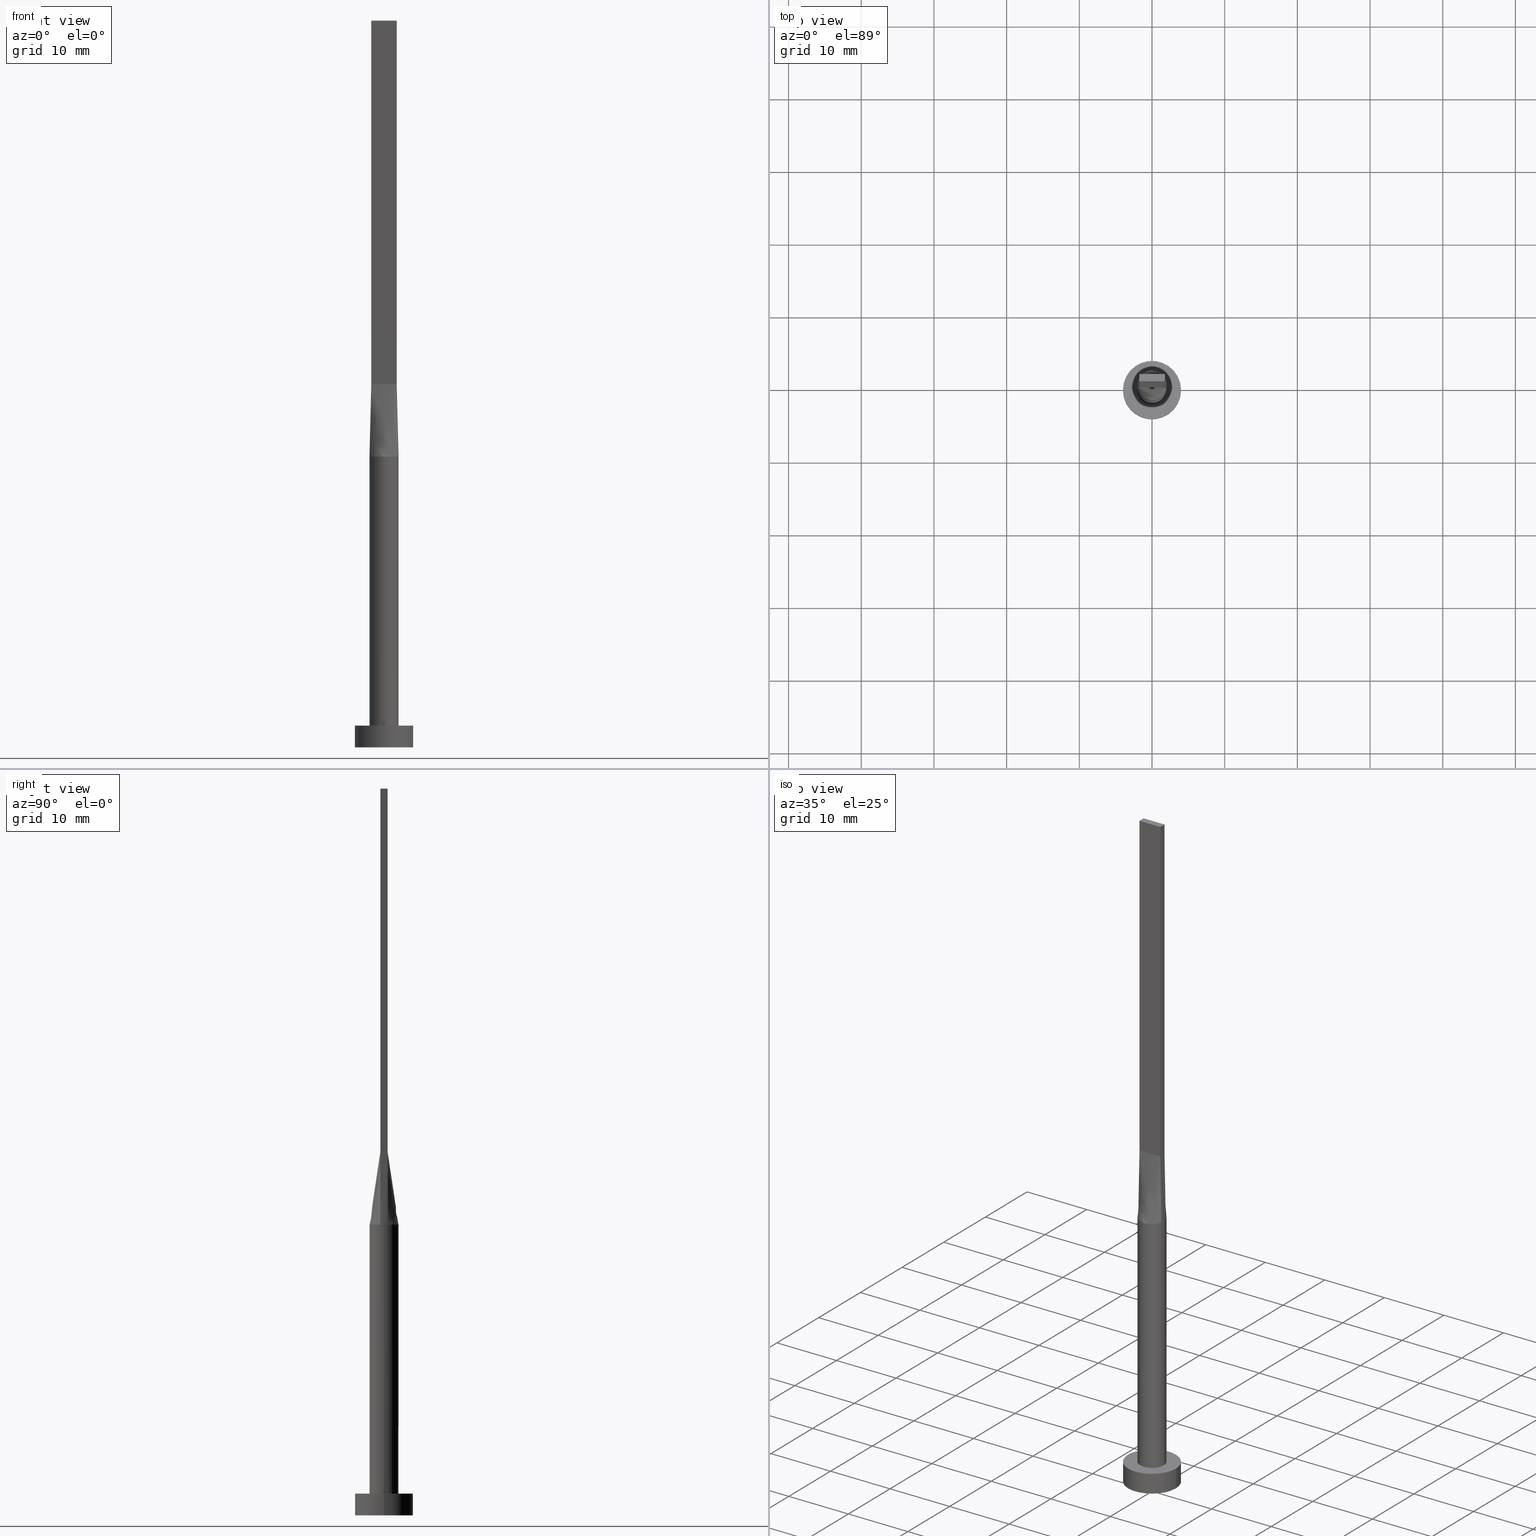
[diagram: canonical four-view strip — front | top / right | iso, engineering-drawing reading convention]
A machine part, canonical four-view strip (front | top / right | iso — engineering-drawing reading convention). The complete STEP part file that produces these views, byte-faithful:
ISO-10303-21;
HEADER;
FILE_DESCRIPTION (( 'STEP AP203' ),
    '1' );
FILE_NAME ('a126.STEP',
    '2023-02-13T13:54:49',
    ( '' ),
    ( '' ),
    'SwSTEP 2.0',
    'SolidWorks 2019',
    '' );
FILE_SCHEMA (( 'CONFIG_CONTROL_DESIGN' ));
ENDSEC;

DATA;
#1 = ORIENTED_EDGE ( 'NONE', *, *, #476, .T. ) ;
#2 = CARTESIAN_POINT ( 'NONE',  ( 0.5833333333333319271, 0.5000000000000002220, 50.00000000000000000 ) ) ;
#3 = VERTEX_POINT ( 'NONE', #136 ) ;
#4 = DIRECTION ( 'NONE',  ( 0.000000000000000000, 0.000000000000000000, 1.000000000000000000 ) ) ;
#5 = DIRECTION ( 'NONE',  ( 1.000000000000000000, 0.000000000000000000, 0.000000000000000000 ) ) ;
#6 = CARTESIAN_POINT ( 'NONE',  ( 1.155438169178558461, 1.647245198242353714, 40.00000000000000000 ) ) ;
#7 = ORIENTED_EDGE ( 'NONE', *, *, #444, .T. ) ;
#8 = CARTESIAN_POINT ( 'NONE',  ( 0.9545234919502409987, 1.774214358793529955, 40.00000000000000000 ) ) ;
#9 = EDGE_CURVE ( 'NONE', #535, #120, #44, .T. ) ;
#10 = CC_DESIGN_APPROVAL ( #73, ( #501 ) ) ;
#11 = CARTESIAN_POINT ( 'NONE',  ( -1.879022738048941710, 0.7035303061092221810, 40.00000000000000000 ) ) ;
#12 = VERTEX_POINT ( 'NONE', #51 ) ;
#13 = DATE_AND_TIME ( #225, #251 ) ;
#14 = CARTESIAN_POINT ( 'NONE',  ( -1.155438169178558461, -1.647245198242353714, 40.00000000000000711 ) ) ;
#15 = ADVANCED_FACE ( 'NONE', ( #95 ), #92, .T. ) ;
#16 = CARTESIAN_POINT ( 'NONE',  ( -0.5833333333333319271, -0.4999999999999995559, 50.00000000000000000 ) ) ;
#17 = CARTESIAN_POINT ( 'NONE',  ( 1.749999999999999778, 0.5000000000000002220, 50.00000000000000000 ) ) ;
#18 = CARTESIAN_POINT ( 'NONE',  ( -1.155438169178558017, 1.647245198242353936, 40.00000000000001421 ) ) ;
#19 = AXIS2_PLACEMENT_3D ( 'NONE', #135, #87, #241 ) ;
#20 = ORIENTED_EDGE ( 'NONE', *, *, #580, .T. ) ;
#21 = DIRECTION ( 'NONE',  ( -0.01730198768854150290, 0.004943425053868997360, 0.9998380887777591486 ) ) ;
#22 = DIRECTION ( 'NONE',  ( 2.168404344971008868E-16, -1.000000000000000000, 0.000000000000000000 ) ) ;
#23 = COORDINATED_UNIVERSAL_TIME_OFFSET ( 1, 0, .AHEAD. ) ;
#24 = ORIENTED_EDGE ( 'NONE', *, *, #476, .F. ) ;
#25 = DIRECTION ( 'NONE',  ( 0.000000000000000000, 0.000000000000000000, 1.000000000000000000 ) ) ;
#26 = ADVANCED_FACE ( 'NONE', ( #63 ), #237, .F. ) ;
#27 = AXIS2_PLACEMENT_3D ( 'NONE', #534, #226, #5 ) ;
#28 = CIRCLE ( 'NONE', #138, 2.000000000000000000 ) ;
#29 = DIRECTION ( 'NONE',  ( -0.000000000000000000, -0.000000000000000000, -1.000000000000000000 ) ) ;
#30 = ORIENTED_EDGE ( 'NONE', *, *, #160, .T. ) ;
#31 = CARTESIAN_POINT ( 'NONE',  ( 1.923047895281646102, -0.5494422557947566954, 40.00000000000000000 ) ) ;
#32 = COORDINATED_UNIVERSAL_TIME_OFFSET ( 1, 0, .AHEAD. ) ;
#33 = CARTESIAN_POINT ( 'NONE',  ( 1.749999999999999778, 0.3333333333333331483, 50.00000000000000000 ) ) ;
#34 = CARTESIAN_POINT ( 'NONE',  ( 1.923186205402444449, -0.5494823831763672173, 40.00000000000000000 ) ) ;
#35 = AXIS2_PLACEMENT_3D ( 'NONE', #443, #299, #309 ) ;
#36 = CARTESIAN_POINT ( 'NONE',  ( 1.836523947640823051, 0.5247211278973783477, 45.00000000000000000 ) ) ;
#37 = EDGE_CURVE ( 'NONE', #394, #463, #211, .T. ) ;
#38 = CARTESIAN_POINT ( 'NONE',  ( 1.999999999999999556, -0.1867399261870124894, 39.99999999999999289 ) ) ;
#39 = LINE ( 'NONE', #423, #460 ) ;
#40 = CC_DESIGN_APPROVAL ( #310, ( #200 ) ) ;
#41 = CARTESIAN_POINT ( 'NONE',  ( 0.000000000000000000, 0.000000000000000000, 0.000000000000000000 ) ) ;
#42 = CARTESIAN_POINT ( 'NONE',  ( -1.973362360690451567, 0.3733416268639390134, 40.00000000000000000 ) ) ;
#43 = CARTESIAN_POINT ( 'NONE',  ( -1.812374357931689994, -0.8669367617086277678, 40.00000000000000711 ) ) ;
#44 = CIRCLE ( 'NONE', #439, 2.000000000000000000 ) ;
#45 = CARTESIAN_POINT ( 'NONE',  ( -0.2514338042514528415, 1.999999999999999556, 40.00000000000000000 ) ) ;
#46 = CARTESIAN_POINT ( 'NONE',  ( 0.000000000000000000, 0.000000000000000000, 3.000000000000000000 ) ) ;
#47 = CARTESIAN_POINT ( 'NONE',  ( 1.923047895281646325, 0.5494422557947561403, 40.00000000000000000 ) ) ;
#48 = VECTOR ( 'NONE', #126, 1000.000000000000000 ) ;
#49 = SECURITY_CLASSIFICATION_LEVEL ( 'unclassified' ) ;
#50 = FACE_BOUND ( 'NONE', #150, .T. ) ;
#51 = CARTESIAN_POINT ( 'NONE',  ( 2.000000000000000000, 2.449293598294706414E-16, 3.000000000000000000 ) ) ;
#52 = CARTESIAN_POINT ( 'NONE',  ( -2.000000000000000000, 0.000000000000000000, 3.000000000000000000 ) ) ;
#53 = CARTESIAN_POINT ( 'NONE',  ( 0.2514338042514535632, 1.999999999999999556, 39.99999999999999289 ) ) ;
#54 = CC_DESIGN_DATE_AND_TIME_ASSIGNMENT ( #13, #106, ( #409 ) ) ;
#55 = CARTESIAN_POINT ( 'NONE',  ( -1.749999999999999778, 0.1666666666666667129, 50.00000000000000000 ) ) ;
#56 = DIRECTION ( 'NONE',  ( 0.000000000000000000, 0.000000000000000000, 1.000000000000000000 ) ) ;
#57 = MANIFOLD_SOLID_BREP ( 'P�idat vysunut�m5', #333 ) ;
#58 = CARTESIAN_POINT ( 'NONE',  ( -1.923047895281646102, 0.5494422557947564734, 40.00000000000000000 ) ) ;
#59 = CARTESIAN_POINT ( 'NONE',  ( -1.812374357931688884, 0.8669367617086288780, 40.00000000000001421 ) ) ;
#60 = AXIS2_PLACEMENT_3D ( 'NONE', #306, #474, #84 ) ;
#61 = APPROVAL_STATUS ( 'not_yet_approved' ) ;
#62 = DIRECTION ( 'NONE',  ( -1.000000000000000000, -0.000000000000000000, -0.000000000000000000 ) ) ;
#63 = FACE_OUTER_BOUND ( 'NONE', #67, .T. ) ;
#64 = CARTESIAN_POINT ( 'NONE',  ( 1.166666666666667407, -0.4999999999999997780, 50.00000000000000000 ) ) ;
#65 = DIRECTION ( 'NONE',  ( -0.000000000000000000, -0.000000000000000000, -1.000000000000000000 ) ) ;
#66 = ORIENTED_EDGE ( 'NONE', *, *, #160, .F. ) ;
#67 = EDGE_LOOP ( 'NONE', ( #449, #109, #301, #30 ) ) ;
#68 = DIRECTION ( 'NONE',  ( 0.000000000000000000, -1.000000000000000000, 0.000000000000000000 ) ) ;
#69 = CARTESIAN_POINT ( 'NONE',  ( 0.5022746254375803909, 1.951069421695587947, 40.00000000000000000 ) ) ;
#70 = ORIENTED_EDGE ( 'NONE', *, *, #145, .T. ) ;
#71 = ORIENTED_EDGE ( 'NONE', *, *, #218, .F. ) ;
#72 = DIRECTION ( 'NONE',  ( 1.000000000000000000, 0.000000000000000000, 0.000000000000000000 ) ) ;
#73 = APPROVAL ( #345, 'NEUR�EN�' ) ;
#74 = ORIENTED_EDGE ( 'NONE', *, *, #330, .F. ) ;
#75 = DIRECTION ( 'NONE',  ( -2.168404344971009361E-16, -1.000000000000000000, 0.000000000000000000 ) ) ;
#76 = PERSON_AND_ORGANIZATION ( #385, #528 ) ;
#77 = CARTESIAN_POINT ( 'NONE',  ( 1.749999999999999778, -0.3333333333333334814, 50.00000000000000000 ) ) ;
#78 = ADVANCED_FACE ( 'NONE', ( #376 ), #506, .F. ) ;
#79 = B_SPLINE_SURFACE_WITH_KNOTS ( 'NONE', 3, 1, ( 
 ( #31, #255 ),
 ( #259, #77 ),
 ( #38, #208 ),
 ( #122, #390 ),
 ( #433, #33 ),
 ( #393, #173 ) ),
 .UNSPECIFIED., .F., .F., .F.,
 ( 4, 2, 4 ),
 ( 2, 2 ),
 ( 0.000000000000000000, 0.5000000000000000000, 1.000000000000000000 ),
 ( 0.000000000000000000, 1.000000000000000000 ),
 .UNSPECIFIED. ) ;
#80 = DIRECTION ( 'NONE',  ( 0.000000000000000000, 0.000000000000000000, 1.000000000000000000 ) ) ;
#81 = CARTESIAN_POINT ( 'NONE',  ( 1.750000000000000000, -0.4999999999999997780, 100.0000000000000000 ) ) ;
#82 = AXIS2_PLACEMENT_3D ( 'NONE', #271, #188, #195 ) ;
#83 = DIRECTION ( 'NONE',  ( -0.000000000000000000, -0.000000000000000000, -1.000000000000000000 ) ) ;
#84 = DIRECTION ( 'NONE',  ( -1.000000000000000000, 0.000000000000000000, 0.000000000000000000 ) ) ;
#85 = VECTOR ( 'NONE', #29, 1000.000000000000000 ) ;
#86 = DIRECTION ( 'NONE',  ( 0.000000000000000000, 0.000000000000000000, 1.000000000000000000 ) ) ;
#87 = DIRECTION ( 'NONE',  ( 0.000000000000000000, 0.000000000000000000, 1.000000000000000000 ) ) ;
#88 = EDGE_LOOP ( 'NONE', ( #107, #254, #263, #375 ) ) ;
#89 = CARTESIAN_POINT ( 'NONE',  ( -0.9545234919502401105, 1.774214358793530177, 40.00000000000000000 ) ) ;
#90 = EDGE_CURVE ( 'NONE', #12, #180, #421, .T. ) ;
#91 = AXIS2_PLACEMENT_3D ( 'NONE', #514, #158, #22 ) ;
#92 = CYLINDRICAL_SURFACE ( 'NONE', #82, 4.000000000000000000 ) ;
#93 = LINE ( 'NONE', #268, #261 ) ;
#94 = CARTESIAN_POINT ( 'NONE',  ( -1.604166666666666519, 0.5000000000000002220, 50.00000000000000000 ) ) ;
#95 = FACE_OUTER_BOUND ( 'NONE', #209, .T. ) ;
#96 = CARTESIAN_POINT ( 'NONE',  ( 1.020833333333331927, 0.5000000000000002220, 50.00000000000000000 ) ) ;
#97 = CC_DESIGN_DATE_AND_TIME_ASSIGNMENT ( #171, #164, ( #200 ) ) ;
#98 = CARTESIAN_POINT ( 'NONE',  ( -0.5833333333333342585, 0.5000000000000002220, 50.00000000000000000 ) ) ;
#99 = DATE_AND_TIME ( #452, #365 ) ;
#100 = DIRECTION ( 'NONE',  ( 1.000000000000000000, -6.195440985631454085E-17, 0.000000000000000000 ) ) ;
#101 = EDGE_LOOP ( 'NONE', ( #24, #287, #402, #379, #496, #516 ) ) ;
#102 = CARTESIAN_POINT ( 'NONE',  ( -1.604166666666666519, -0.4999999999999995559, 50.00000000000000000 ) ) ;
#103 = ORIENTED_EDGE ( 'NONE', *, *, #123, .F. ) ;
#104 = CARTESIAN_POINT ( 'NONE',  ( 0.1458333333333347304, -0.4999999999999997780, 50.00000000000000000 ) ) ;
#105 = CC_DESIGN_PERSON_AND_ORGANIZATION_ASSIGNMENT ( #422, #389, ( #200 ) ) ;
#106 = DATE_TIME_ROLE ( 'classification_date' ) ;
#107 = ORIENTED_EDGE ( 'NONE', *, *, #505, .T. ) ;
#108 = CARTESIAN_POINT ( 'NONE',  ( -1.616149014776643744, -1.193458220519941326, 39.99999999999998579 ) ) ;
#109 = ORIENTED_EDGE ( 'NONE', *, *, #37, .F. ) ;
#110 = CARTESIAN_POINT ( 'NONE',  ( -0.7291666666666652974, -0.4999999999999995559, 50.00000000000000000 ) ) ;
#111 = ORIENTED_EDGE ( 'NONE', *, *, #405, .F. ) ;
#112 = ORIENTED_EDGE ( 'NONE', *, *, #398, .T. ) ;
#113 = CARTESIAN_POINT ( 'NONE',  ( 1.923047895281646325, -0.5494422557947558072, 40.00000000000000000 ) ) ;
#114 = EDGE_LOOP ( 'NONE', ( #162, #249, #391, #111 ) ) ;
#115 = VECTOR ( 'NONE', #353, 1000.000000000000000 ) ;
#116 = EDGE_CURVE ( 'NONE', #531, #129, #314, .T. ) ;
#117 = CARTESIAN_POINT ( 'NONE',  ( 4.000000000000000000, 4.898587196589412829E-16, 3.000000000000000000 ) ) ;
#118 = DIRECTION ( 'NONE',  ( 0.000000000000000000, 0.000000000000000000, 1.000000000000000000 ) ) ;
#119 = FACE_OUTER_BOUND ( 'NONE', #504, .T. ) ;
#120 = VERTEX_POINT ( 'NONE', #34 ) ;
#121 = B_SPLINE_CURVE_WITH_KNOTS ( 'NONE', 3,
 ( #197, #550, #334, #156, #288, #332, #461, #69, #244, #412, #503, #196, #18, #235, #419, #59, #11, #371 ),
 .UNSPECIFIED., .F., .F.,
 ( 4, 2, 2, 2, 2, 2, 2, 2, 4 ),
 ( 0.000000000000000000, 0.1249999999999999722, 0.2500000000000000000, 0.3750000000000000000, 0.5000000000000001110, 0.6250000000000001110, 0.7500000000000000000, 0.8750000000000000000, 1.000000000000000000 ),
 .UNSPECIFIED. ) ;
#122 = CARTESIAN_POINT ( 'NONE',  ( 1.999999999999999556, 0.1867399261870121008, 39.99999999999998579 ) ) ;
#123 = EDGE_CURVE ( 'NONE', #414, #346, #128, .T. ) ;
#124 = PRODUCT ( 'a126', 'a126', '', ( #292 ) ) ;
#125 = CIRCLE ( 'NONE', #356, 4.000000000000000000 ) ;
#126 = DIRECTION ( 'NONE',  ( -2.168404344971009361E-16, -1.000000000000000000, 0.000000000000000000 ) ) ;
#127 = EDGE_LOOP ( 'NONE', ( #233, #1, #234, #475, #270, #291 ) ) ;
#128 = LINE ( 'NONE', #573, #360 ) ;
#129 = VERTEX_POINT ( 'NONE', #577 ) ;
#130 = APPROVAL_ROLE ( '' ) ;
#131 = LINE ( 'NONE', #513, #479 ) ;
#132 = CARTESIAN_POINT ( 'NONE',  ( -1.973362360690451345, -0.3733416268639377367, 40.00000000000000000 ) ) ;
#133 = DIRECTION ( 'NONE',  ( 0.000000000000000000, 0.000000000000000000, 1.000000000000000000 ) ) ;
#134 = UNCERTAINTY_MEASURE_WITH_UNIT (LENGTH_MEASURE( 1.000000000000000082E-05 ), #434, 'distance_accuracy_value', 'NONE');
#135 = CARTESIAN_POINT ( 'NONE',  ( 0.000000000000000000, 0.000000000000000000, 3.000000000000000000 ) ) ;
#136 = CARTESIAN_POINT ( 'NONE',  ( 1.750000000000000000, -0.4999999999999997780, 100.0000000000000000 ) ) ;
#137 = ADVANCED_FACE ( 'NONE', ( #493 ), #275, .T. ) ;
#138 = AXIS2_PLACEMENT_3D ( 'NONE', #176, #354, #320 ) ;
#139 = CARTESIAN_POINT ( 'NONE',  ( 1.604166666666665408, 0.5000000000000002220, 50.00000000000000000 ) ) ;
#140 = CARTESIAN_POINT ( 'NONE',  ( -1.020833333333333703, 0.5000000000000002220, 50.00000000000000000 ) ) ;
#141 = AXIS2_PLACEMENT_3D ( 'NONE', #429, #133, #219 ) ;
#142 = EDGE_LOOP ( 'NONE', ( #312, #20 ) ) ;
#143 = ORIENTED_EDGE ( 'NONE', *, *, #551, .T. ) ;
#144 = DIRECTION ( 'NONE',  ( 1.000000000000000000, -2.168404344971009361E-16, 0.000000000000000000 ) ) ;
#145 = EDGE_CURVE ( 'NONE', #319, #3, #430, .T. ) ;
#146 = ORIENTED_EDGE ( 'NONE', *, *, #330, .T. ) ;
#147 = CARTESIAN_POINT ( 'NONE',  ( 0.5022746254375803909, 1.951069421695587947, 40.00000000000000000 ) ) ;
#148 = AXIS2_PLACEMENT_3D ( 'NONE', #431, #512, #166 ) ;
#149 = ORIENTED_EDGE ( 'NONE', *, *, #175, .F. ) ;
#150 = EDGE_LOOP ( 'NONE', ( #420, #183 ) ) ;
#151 = CARTESIAN_POINT ( 'NONE',  ( -4.000000000000000000, 0.000000000000000000, 0.000000000000000000 ) ) ;
#152 = CARTESIAN_POINT ( 'NONE',  ( -1.749999999999999778, 0.5000000000000002220, 50.00000000000000000 ) ) ;
#153 = EDGE_LOOP ( 'NONE', ( #146, #295, #480, #495 ) ) ;
#154 = CARTESIAN_POINT ( 'NONE',  ( -1.458333333333332815, -0.4999999999999995559, 50.00000000000000000 ) ) ;
#155 = CARTESIAN_POINT ( 'NONE',  ( 2.000000000000000000, 2.449293598294706414E-16, 40.00000000000000000 ) ) ;
#156 = CARTESIAN_POINT ( 'NONE',  ( 1.616149014776643522, 1.193458220519943103, 40.00000000000000000 ) ) ;
#157 = B_SPLINE_SURFACE_WITH_KNOTS ( 'NONE', 3, 1, ( 
 ( #317, #487 ),
 ( #190, #102 ),
 ( #43, #154 ),
 ( #108, #201 ),
 ( #499, #286 ),
 ( #14, #110 ),
 ( #192, #16 ),
 ( #230, #368 ),
 ( #418, #378 ),
 ( #547, #104 ),
 ( #161, #556 ),
 ( #410, #415 ),
 ( #507, #329 ),
 ( #457, #545 ),
 ( #335, #64 ),
 ( #374, #327 ),
 ( #284, #283 ),
 ( #113, #454 ) ),
 .UNSPECIFIED., .F., .F., .F.,
 ( 4, 2, 2, 2, 2, 2, 2, 2, 4 ),
 ( 2, 2 ),
 ( 0.000000000000000000, 0.1249999999999999722, 0.2500000000000000000, 0.3750000000000000000, 0.5000000000000001110, 0.6250000000000001110, 0.7500000000000000000, 0.8750000000000000000, 1.000000000000000000 ),
 ( 0.000000000000000000, 1.000000000000000000 ),
 .UNSPECIFIED. ) ;
#158 = DIRECTION ( 'NONE',  ( -1.000000000000000000, -2.168404344971008868E-16, 0.000000000000000000 ) ) ;
#159 = DIRECTION ( 'NONE',  ( -2.168404344971008868E-16, 1.000000000000000000, -0.000000000000000000 ) ) ;
#160 = EDGE_CURVE ( 'NONE', #3, #346, #278, .T. ) ;
#161 = CARTESIAN_POINT ( 'NONE',  ( 0.5022746254375793917, -1.951069421695588169, 40.00000000000000000 ) ) ;
#162 = ORIENTED_EDGE ( 'NONE', *, *, #580, .F. ) ;
#163 = APPROVAL_PERSON_ORGANIZATION ( #364, #370, #494 ) ;
#164 = DATE_TIME_ROLE ( 'creation_date' ) ;
#165 = CARTESIAN_POINT ( 'NONE',  ( -2.000000000000000000, 0.000000000000000000, 40.00000000000000000 ) ) ;
#166 = DIRECTION ( 'NONE',  ( 1.000000000000000000, 0.000000000000000000, -0.000000000000000000 ) ) ;
#167 = CARTESIAN_POINT ( 'NONE',  ( -1.923047895281646547, -0.5494422557947552521, 40.00000000000000000 ) ) ;
#168 = PERSON_AND_ORGANIZATION ( #385, #528 ) ;
#169 = LINE ( 'NONE', #521, #115 ) ;
#170 = CIRCLE ( 'NONE', #223, 2.000000000000000000 ) ;
#171 = DATE_AND_TIME ( #381, #282 ) ;
#172 = ORIENTED_EDGE ( 'NONE', *, *, #562, .F. ) ;
#173 = CARTESIAN_POINT ( 'NONE',  ( 1.749999999999999778, 0.5000000000000002220, 50.00000000000000000 ) ) ;
#174 = CARTESIAN_POINT ( 'NONE',  ( -1.749999999999999778, -0.1666666666666665186, 50.00000000000000000 ) ) ;
#175 = EDGE_CURVE ( 'NONE', #531, #575, #482, .T. ) ;
#176 = CARTESIAN_POINT ( 'NONE',  ( 0.000000000000000000, 0.000000000000000000, 40.00000000000000000 ) ) ;
#177 = CARTESIAN_POINT ( 'NONE',  ( 0.000000000000000000, 0.000000000000000000, 40.00000000000000000 ) ) ;
#178 = AXIS2_PLACEMENT_3D ( 'NONE', #387, #307, #570 ) ;
#179 = AXIS2_PLACEMENT_3D ( 'NONE', #238, #253, #473 ) ;
#180 = VERTEX_POINT ( 'NONE', #52 ) ;
#181 = CARTESIAN_POINT ( 'NONE',  ( 1.616149014776643522, 1.193458220519943103, 40.00000000000000000 ) ) ;
#182 = ORIENTED_EDGE ( 'NONE', *, *, #250, .F. ) ;
#183 = ORIENTED_EDGE ( 'NONE', *, *, #90, .F. ) ;
#184 = ORIENTED_EDGE ( 'NONE', *, *, #388, .F. ) ;
#185 = ADVANCED_FACE ( 'NONE', ( #50, #536 ), #489, .T. ) ;
#186 = FACE_OUTER_BOUND ( 'NONE', #153, .T. ) ;
#187 = DATE_AND_TIME ( #281, #242 ) ;
#188 = DIRECTION ( 'NONE',  ( -0.000000000000000000, -0.000000000000000000, -1.000000000000000000 ) ) ;
#189 = CARTESIAN_POINT ( 'NONE',  ( 0.1458333333333322601, 0.5000000000000002220, 50.00000000000000000 ) ) ;
#190 = CARTESIAN_POINT ( 'NONE',  ( -1.879022738048942598, -0.7035303061092208488, 40.00000000000000000 ) ) ;
#191 = VECTOR ( 'NONE', #294, 1000.000000000000000 ) ;
#192 = CARTESIAN_POINT ( 'NONE',  ( -0.9545234919502417759, -1.774214358793529067, 40.00000000000000000 ) ) ;
#193 = PERSON_AND_ORGANIZATION ( #385, #528 ) ;
#194 = EDGE_CURVE ( 'NONE', #490, #463, #462, .T. ) ;
#195 = DIRECTION ( 'NONE',  ( -1.000000000000000000, 0.000000000000000000, 0.000000000000000000 ) ) ;
#196 = CARTESIAN_POINT ( 'NONE',  ( -0.9545234919502401105, 1.774214358793530177, 40.00000000000000000 ) ) ;
#197 = CARTESIAN_POINT ( 'NONE',  ( 1.923154993136894975, 0.5494733089275741778, 40.00000000000000000 ) ) ;
#198 = AXIS2_PLACEMENT_3D ( 'NONE', #427, #118, #72 ) ;
#199 = CARTESIAN_POINT ( 'NONE',  ( -1.749999999999999778, 0.5000000000000002220, 50.00000000000000000 ) ) ;
#200 = PRODUCT_DEFINITION ( 'NEZN�M�', '', #501, #450 ) ;
#201 = CARTESIAN_POINT ( 'NONE',  ( -1.166666666666665630, -0.4999999999999995559, 50.00000000000000000 ) ) ;
#202 = ORIENTED_EDGE ( 'NONE', *, *, #250, .T. ) ;
#203 = CARTESIAN_POINT ( 'NONE',  ( 1.749999999999999778, 0.5000000000000002220, 100.0000000000000000 ) ) ;
#204 = CARTESIAN_POINT ( 'NONE',  ( -1.749999999999999778, 0.5000000000000002220, 100.0000000000000000 ) ) ;
#205 = CARTESIAN_POINT ( 'NONE',  ( 0.000000000000000000, 0.000000000000000000, 40.00000000000000000 ) ) ;
#206 = EDGE_CURVE ( 'NONE', #552, #548, #508, .T. ) ;
#207 = APPLICATION_PROTOCOL_DEFINITION ( 'international standard', 'config_control_design', 1994, #560 ) ;
#208 = CARTESIAN_POINT ( 'NONE',  ( 1.749999999999999778, -0.1666666666666669905, 50.00000000000000000 ) ) ;
#209 = EDGE_LOOP ( 'NONE', ( #184, #243, #361, #564 ) ) ;
#210 = CARTESIAN_POINT ( 'NONE',  ( -1.999999999999999556, 0.1867399261870127114, 39.99999999999999289 ) ) ;
#211 = LINE ( 'NONE', #469, #407 ) ;
#212 = VECTOR ( 'NONE', #100, 1000.000000000000000 ) ;
#213 = CARTESIAN_POINT ( 'NONE',  ( 1.750000000000000000, -0.4999999999999997780, 50.00000000000000000 ) ) ;
#214 = DIRECTION ( 'NONE',  ( 0.000000000000000000, 0.000000000000000000, 1.000000000000000000 ) ) ;
#215 = VERTEX_POINT ( 'NONE', #151 ) ;
#216 = CALENDAR_DATE ( 2023, 13, 2 ) ;
#217 = CARTESIAN_POINT ( 'NONE',  ( 4.000000000000000000, 4.898587196589412829E-16, 3.000000000000000000 ) ) ;
#218 = EDGE_CURVE ( 'NONE', #120, #346, #538, .T. ) ;
#219 = DIRECTION ( 'NONE',  ( 1.000000000000000000, 0.000000000000000000, 0.000000000000000000 ) ) ;
#220 = CARTESIAN_POINT ( 'NONE',  ( -1.750000000000000000, -0.4999999999999995559, 50.00000000000000000 ) ) ;
#221 = CARTESIAN_POINT ( 'NONE',  ( -0.2916666666666677954, 0.5000000000000002220, 50.00000000000000000 ) ) ;
#222 = EDGE_CURVE ( 'NONE', #414, #535, #93, .T. ) ;
#223 = AXIS2_PLACEMENT_3D ( 'NONE', #445, #4, #311 ) ;
#224 = CARTESIAN_POINT ( 'NONE',  ( 1.458333333333332149, 0.5000000000000002220, 50.00000000000000000 ) ) ;
#225 = CALENDAR_DATE ( 2023, 13, 2 ) ;
#226 = DIRECTION ( 'NONE',  ( 0.000000000000000000, 0.000000000000000000, 1.000000000000000000 ) ) ;
#227 = DIRECTION ( 'NONE',  ( -0.000000000000000000, -0.000000000000000000, -1.000000000000000000 ) ) ;
#228 = APPROVAL_DATE_TIME ( #99, #73 ) ;
#229 = CARTESIAN_POINT ( 'NONE',  ( -1.812374357931688884, 0.8669367617086288780, 40.00000000000001421 ) ) ;
#230 = CARTESIAN_POINT ( 'NONE',  ( -0.5022746254375808350, -1.951069421695587724, 40.00000000000000000 ) ) ;
#231 = AXIS2_PLACEMENT_3D ( 'NONE', #468, #86, #264 ) ;
#232 = ADVANCED_FACE ( 'NONE', ( #432 ), #247, .T. ) ;
#233 = ORIENTED_EDGE ( 'NONE', *, *, #398, .F. ) ;
#234 = ORIENTED_EDGE ( 'NONE', *, *, #90, .T. ) ;
#235 = CARTESIAN_POINT ( 'NONE',  ( -1.486037034853319616, 1.356520562679218056, 40.00000000000000000 ) ) ;
#236 = AXIS2_PLACEMENT_3D ( 'NONE', #203, #68, #557 ) ;
#237 = PLANE ( 'NONE',  #91 ) ;
#238 = CARTESIAN_POINT ( 'NONE',  ( 0.000000000000000000, 0.000000000000000000, 3.000000000000000000 ) ) ;
#239 = ADVANCED_FACE ( 'NONE', ( #425 ), #350, .F. ) ;
#240 = CARTESIAN_POINT ( 'NONE',  ( 4.000000000000000000, 4.898587196589412829E-16, 0.000000000000000000 ) ) ;
#241 = DIRECTION ( 'NONE',  ( 1.000000000000000000, 0.000000000000000000, -0.000000000000000000 ) ) ;
#242 = LOCAL_TIME ( 14, 54, 48.00000000000000000, #277 ) ;
#243 = ORIENTED_EDGE ( 'NONE', *, *, #206, .F. ) ;
#244 = CARTESIAN_POINT ( 'NONE',  ( 0.2514338042514535632, 1.999999999999999556, 39.99999999999999289 ) ) ;
#245 = ORIENTED_EDGE ( 'NONE', *, *, #145, .F. ) ;
#246 = APPROVAL_ROLE ( '' ) ;
#247 = B_SPLINE_SURFACE_WITH_KNOTS ( 'NONE', 3, 1, ( 
 ( #58, #367 ),
 ( #42, #266 ),
 ( #210, #55 ),
 ( #396, #174 ),
 ( #132, #525 ),
 ( #167, #477 ) ),
 .UNSPECIFIED., .F., .F., .F.,
 ( 4, 2, 4 ),
 ( 2, 2 ),
 ( 0.000000000000000000, 0.5000000000000000000, 1.000000000000000000 ),
 ( 0.000000000000000000, 1.000000000000000000 ),
 .UNSPECIFIED. ) ;
#248 = FACE_OUTER_BOUND ( 'NONE', #326, .T. ) ;
#249 = ORIENTED_EDGE ( 'NONE', *, *, #388, .T. ) ;
#250 = EDGE_CURVE ( 'NONE', #394, #572, #169, .T. ) ;
#251 = LOCAL_TIME ( 14, 54, 48.00000000000000000, #543 ) ;
#252 = LINE ( 'NONE', #297, #48 ) ;
#253 = DIRECTION ( 'NONE',  ( 0.000000000000000000, 0.000000000000000000, 1.000000000000000000 ) ) ;
#254 = ORIENTED_EDGE ( 'NONE', *, *, #175, .T. ) ;
#255 = CARTESIAN_POINT ( 'NONE',  ( 1.750000000000000000, -0.4999999999999997780, 50.00000000000000000 ) ) ;
#256 = ORIENTED_EDGE ( 'NONE', *, *, #9, .T. ) ;
#257 = ADVANCED_FACE ( 'NONE', ( #565 ), #472, .T. ) ;
#258 = PLANE ( 'NONE',  #148 ) ;
#259 = CARTESIAN_POINT ( 'NONE',  ( 1.973362360690451567, -0.3733416268639390689, 40.00000000000000000 ) ) ;
#260 = DIRECTION ( 'NONE',  ( 1.000000000000000000, 0.000000000000000000, 0.000000000000000000 ) ) ;
#261 = VECTOR ( 'NONE', #519, 1000.000000000000227 ) ;
#262 = VECTOR ( 'NONE', #62, 1000.000000000000000 ) ;
#263 = ORIENTED_EDGE ( 'NONE', *, *, #485, .F. ) ;
#264 = DIRECTION ( 'NONE',  ( 1.000000000000000000, 0.000000000000000000, 0.000000000000000000 ) ) ;
#265 = CARTESIAN_POINT ( 'NONE',  ( -1.616149014776643966, 1.193458220519943103, 40.00000000000002132 ) ) ;
#266 = CARTESIAN_POINT ( 'NONE',  ( -1.749999999999999778, 0.3333333333333334259, 50.00000000000000000 ) ) ;
#267 = PRODUCT_RELATED_PRODUCT_CATEGORY ( 'detail', '', ( #124 ) ) ;
#268 = CARTESIAN_POINT ( 'NONE',  ( -1.836523947640823273, -0.5247211278973773485, 45.00000000000000000 ) ) ;
#269 = CARTESIAN_POINT ( 'NONE',  ( 1.166666666666665186, 0.5000000000000002220, 50.00000000000000000 ) ) ;
#270 = ORIENTED_EDGE ( 'NONE', *, *, #116, .F. ) ;
#271 = CARTESIAN_POINT ( 'NONE',  ( 0.000000000000000000, 0.000000000000000000, 3.000000000000000000 ) ) ;
#272 = DIRECTION ( 'NONE',  ( 0.01730198768854152372, -0.004943425053868931440, 0.9998380887777591486 ) ) ;
#273 = AXIS2_PLACEMENT_3D ( 'NONE', #205, #344, #340 ) ;
#274 = CARTESIAN_POINT ( 'NONE',  ( -0.7291666666666674068, 0.5000000000000002220, 50.00000000000000000 ) ) ;
#275 = CYLINDRICAL_SURFACE ( 'NONE', #35, 2.000000000000000000 ) ;
#276 = DIRECTION ( 'NONE',  ( 1.000000000000000000, 0.000000000000000000, 0.000000000000000000 ) ) ;
#277 = COORDINATED_UNIVERSAL_TIME_OFFSET ( 1, 0, .AHEAD. ) ;
#278 = LINE ( 'NONE', #529, #323 ) ;
#279 = EDGE_CURVE ( 'NONE', #215, #486, #417, .T. ) ;
#280 = CARTESIAN_POINT ( 'NONE',  ( 1.923154993136894975, 0.5494733089275741778, 40.00000000000000000 ) ) ;
#281 = CALENDAR_DATE ( 2023, 13, 2 ) ;
#282 = LOCAL_TIME ( 14, 54, 48.00000000000000000, #23 ) ;
#283 = CARTESIAN_POINT ( 'NONE',  ( 1.604166666666666963, -0.4999999999999997780, 50.00000000000000000 ) ) ;
#284 = CARTESIAN_POINT ( 'NONE',  ( 1.879022738048941710, -0.7035303061092221810, 40.00000000000000000 ) ) ;
#285 = EDGE_CURVE ( 'NONE', #486, #215, #328, .T. ) ;
#286 = CARTESIAN_POINT ( 'NONE',  ( -1.020833333333332149, -0.4999999999999995559, 50.00000000000000000 ) ) ;
#287 = ORIENTED_EDGE ( 'NONE', *, *, #444, .F. ) ;
#288 = CARTESIAN_POINT ( 'NONE',  ( 1.486037034853319616, 1.356520562679217834, 39.99999999999997868 ) ) ;
#289 = AXIS2_PLACEMENT_3D ( 'NONE', #41, #214, #566 ) ;
#290 =( NAMED_UNIT ( * ) SI_UNIT ( $, .STERADIAN. ) SOLID_ANGLE_UNIT ( ) );
#291 = ORIENTED_EDGE ( 'NONE', *, *, #505, .F. ) ;
#292 = MECHANICAL_CONTEXT ( 'NONE', #560, 'mechanical' ) ;
#293 = ADVANCED_FACE ( 'NONE', ( #119 ), #383, .F. ) ;
#294 = DIRECTION ( 'NONE',  ( -2.168404344971008868E-16, 1.000000000000000000, 0.000000000000000000 ) ) ;
#295 = ORIENTED_EDGE ( 'NONE', *, *, #551, .F. ) ;
#296 = ORIENTED_EDGE ( 'NONE', *, *, #222, .F. ) ;
#297 = CARTESIAN_POINT ( 'NONE',  ( -1.749999999999999778, 0.5000000000000002220, 100.0000000000000000 ) ) ;
#298 = VECTOR ( 'NONE', #65, 1000.000000000000000 ) ;
#299 = DIRECTION ( 'NONE',  ( -0.000000000000000000, -0.000000000000000000, -1.000000000000000000 ) ) ;
#300 = CARTESIAN_POINT ( 'NONE',  ( -1.749999999999999778, 0.5000000000000002220, 50.00000000000000000 ) ) ;
#301 = ORIENTED_EDGE ( 'NONE', *, *, #348, .F. ) ;
#302 = LINE ( 'NONE', #81, #191 ) ;
#303 = CC_DESIGN_PERSON_AND_ORGANIZATION_ASSIGNMENT ( #567, #386, ( #124 ) ) ;
#304 = DIRECTION ( 'NONE',  ( 1.000000000000000000, 0.000000000000000000, 0.000000000000000000 ) ) ;
#305 = LINE ( 'NONE', #204, #85 ) ;
#306 = CARTESIAN_POINT ( 'NONE',  ( 0.000000000000000000, 0.000000000000000000, 3.000000000000000000 ) ) ;
#307 = DIRECTION ( 'NONE',  ( 6.195440985631454085E-17, 1.000000000000000000, -0.000000000000000000 ) ) ;
#308 = VECTOR ( 'NONE', #227, 1000.000000000000000 ) ;
#309 = DIRECTION ( 'NONE',  ( -1.000000000000000000, 0.000000000000000000, 0.000000000000000000 ) ) ;
#310 = APPROVAL ( #558, 'NEUR�EN�' ) ;
#311 = DIRECTION ( 'NONE',  ( 1.000000000000000000, 0.000000000000000000, 0.000000000000000000 ) ) ;
#312 = ORIENTED_EDGE ( 'NONE', *, *, #206, .T. ) ;
#313 = CARTESIAN_POINT ( 'NONE',  ( -1.166666666666666963, 0.5000000000000002220, 50.00000000000000000 ) ) ;
#314 = CIRCLE ( 'NONE', #141, 2.000000000000000000 ) ;
#315 = EDGE_LOOP ( 'NONE', ( #331, #511, #296, #74, #149 ) ) ;
#316 = ORIENTED_EDGE ( 'NONE', *, *, #337, .T. ) ;
#317 = CARTESIAN_POINT ( 'NONE',  ( -1.923047895281646547, -0.5494422557947552521, 40.00000000000000000 ) ) ;
#318 = PERSON_AND_ORGANIZATION_ROLE ( 'design_supplier' ) ;
#319 = VERTEX_POINT ( 'NONE', #559 ) ;
#320 = DIRECTION ( 'NONE',  ( 1.000000000000000000, 3.552713678800500929E-15, 0.000000000000000000 ) ) ;
#321 = EDGE_CURVE ( 'NONE', #129, #180, #517, .T. ) ;
#322 = CARTESIAN_POINT ( 'NONE',  ( -1.923047895281646325, 0.5494422557947555852, 40.00000000000000000 ) ) ;
#323 = VECTOR ( 'NONE', #447, 1000.000000000000000 ) ;
#324 = PERSON_AND_ORGANIZATION ( #385, #528 ) ;
#325 = ORIENTED_EDGE ( 'NONE', *, *, #279, .F. ) ;
#326 = EDGE_LOOP ( 'NONE', ( #7, #112, #339, #483, #71 ) ) ;
#327 = CARTESIAN_POINT ( 'NONE',  ( 1.458333333333333925, -0.4999999999999997780, 50.00000000000000000 ) ) ;
#328 = CIRCLE ( 'NONE', #231, 4.000000000000000000 ) ;
#329 = CARTESIAN_POINT ( 'NONE',  ( 0.7291666666666678509, -0.4999999999999997780, 50.00000000000000000 ) ) ;
#330 = EDGE_CURVE ( 'NONE', #575, #414, #131, .T. ) ;
#331 = ORIENTED_EDGE ( 'NONE', *, *, #116, .T. ) ;
#332 = CARTESIAN_POINT ( 'NONE',  ( 1.155438169178558461, 1.647245198242353714, 40.00000000000000000 ) ) ;
#333 = CLOSED_SHELL ( 'NONE', ( #137, #380, #15, #185, #293, #257, #459, #357, #232, #455, #78, #411, #239, #26, #571 ) ) ;
#334 = CARTESIAN_POINT ( 'NONE',  ( 1.812374357931689328, 0.8669367617086293221, 40.00000000000002132 ) ) ;
#335 = CARTESIAN_POINT ( 'NONE',  ( 1.616149014776643522, -1.193458220519943547, 40.00000000000000000 ) ) ;
#336 = CIRCLE ( 'NONE', #549, 2.000000000000000000 ) ;
#337 = EDGE_CURVE ( 'NONE', #572, #319, #252, .T. ) ;
#338 = CARTESIAN_POINT ( 'NONE',  ( -4.000000000000000000, 0.000000000000000000, 3.000000000000000000 ) ) ;
#339 = ORIENTED_EDGE ( 'NONE', *, *, #194, .T. ) ;
#340 = DIRECTION ( 'NONE',  ( -1.000000000000000000, 0.000000000000000000, 0.000000000000000000 ) ) ;
#341 = ORIENTED_EDGE ( 'NONE', *, *, #348, .T. ) ;
#342 = ORIENTED_EDGE ( 'NONE', *, *, #37, .T. ) ;
#343 = CARTESIAN_POINT ( 'NONE',  ( -1.749999999999999778, 0.5000000000000002220, 100.0000000000000000 ) ) ;
#344 = DIRECTION ( 'NONE',  ( -0.000000000000000000, -0.000000000000000000, -1.000000000000000000 ) ) ;
#345 = APPROVAL_STATUS ( 'not_yet_approved' ) ;
#346 = VERTEX_POINT ( 'NONE', #213 ) ;
#347 = DIRECTION ( 'NONE',  ( -0.000000000000000000, -0.000000000000000000, -1.000000000000000000 ) ) ;
#348 = EDGE_CURVE ( 'NONE', #3, #394, #302, .T. ) ;
#349 = AXIS2_PLACEMENT_3D ( 'NONE', #464, #25, #428 ) ;
#350 = PLANE ( 'NONE',  #178 ) ;
#351 = ORIENTED_EDGE ( 'NONE', *, *, #485, .T. ) ;
#352 = VECTOR ( 'NONE', #578, 1000.000000000000227 ) ;
#353 = DIRECTION ( 'NONE',  ( -1.000000000000000000, 0.000000000000000000, 0.000000000000000000 ) ) ;
#354 = DIRECTION ( 'NONE',  ( 0.000000000000000000, 0.000000000000000000, 1.000000000000000000 ) ) ;
#355 = VECTOR ( 'NONE', #21, 1000.000000000000227 ) ;
#356 = AXIS2_PLACEMENT_3D ( 'NONE', #395, #80, #563 ) ;
#357 = ADVANCED_FACE ( 'NONE', ( #248 ), #79, .T. ) ;
#358 = CARTESIAN_POINT ( 'NONE',  ( -1.155438169178558017, 1.647245198242353936, 40.00000000000001421 ) ) ;
#359 = CARTESIAN_POINT ( 'NONE',  ( -0.1458333333333343695, 0.5000000000000002220, 50.00000000000000000 ) ) ;
#360 = VECTOR ( 'NONE', #478, 1000.000000000000000 ) ;
#361 = ORIENTED_EDGE ( 'NONE', *, *, #405, .T. ) ;
#362 = CARTESIAN_POINT ( 'NONE',  ( 1.812374357931689328, 0.8669367617086293221, 40.00000000000002132 ) ) ;
#363 = CC_DESIGN_PERSON_AND_ORGANIZATION_ASSIGNMENT ( #193, #446, ( #409 ) ) ;
#364 = PERSON_AND_ORGANIZATION ( #385, #528 ) ;
#365 = LOCAL_TIME ( 14, 54, 48.00000000000000000, #518 ) ;
#366 = DIRECTION ( 'NONE',  ( -0.000000000000000000, -0.000000000000000000, -1.000000000000000000 ) ) ;
#367 = CARTESIAN_POINT ( 'NONE',  ( -1.749999999999999778, 0.5000000000000002220, 50.00000000000000000 ) ) ;
#368 = CARTESIAN_POINT ( 'NONE',  ( -0.2916666666666653529, -0.4999999999999995559, 50.00000000000000000 ) ) ;
#369 = SHAPE_DEFINITION_REPRESENTATION ( #458, #441 ) ;
#370 = APPROVAL ( #61, 'NEUR�EN�' ) ;
#371 = CARTESIAN_POINT ( 'NONE',  ( -1.923179810488875541, 0.5494804890868837388, 40.00000000000000000 ) ) ;
#372 = B_SPLINE_SURFACE_WITH_KNOTS ( 'NONE', 3, 1, ( 
 ( #47, #530 ),
 ( #399, #139 ),
 ( #362, #224 ),
 ( #181, #269 ),
 ( #403, #96 ),
 ( #6, #408 ),
 ( #8, #2 ),
 ( #147, #491 ),
 ( #53, #189 ),
 ( #45, #359 ),
 ( #481, #221 ),
 ( #89, #98 ),
 ( #358, #274 ),
 ( #448, #140 ),
 ( #265, #313 ),
 ( #229, #542 ),
 ( #484, #94 ),
 ( #322, #152 ) ),
 .UNSPECIFIED., .F., .F., .F.,
 ( 4, 2, 2, 2, 2, 2, 2, 2, 4 ),
 ( 2, 2 ),
 ( 0.000000000000000000, 0.1249999999999999722, 0.2500000000000000000, 0.3750000000000000000, 0.5000000000000001110, 0.6250000000000001110, 0.7500000000000000000, 0.8750000000000000000, 1.000000000000000000 ),
 ( 0.000000000000000000, 1.000000000000000000 ),
 .UNSPECIFIED. ) ;
#373 = CIRCLE ( 'NONE', #179, 2.000000000000000000 ) ;
#374 = CARTESIAN_POINT ( 'NONE',  ( 1.812374357931689106, -0.8669367617086289890, 40.00000000000000000 ) ) ;
#375 = ORIENTED_EDGE ( 'NONE', *, *, #194, .F. ) ;
#376 = FACE_OUTER_BOUND ( 'NONE', #561, .T. ) ;
#377 = LINE ( 'NONE', #553, #384 ) ;
#378 = CARTESIAN_POINT ( 'NONE',  ( -0.1458333333333320381, -0.4999999999999996669, 50.00000000000000000 ) ) ;
#379 = ORIENTED_EDGE ( 'NONE', *, *, #426, .F. ) ;
#380 = ADVANCED_FACE ( 'NONE', ( #576 ), #523, .T. ) ;
#381 = CALENDAR_DATE ( 2023, 13, 2 ) ;
#382 = EDGE_LOOP ( 'NONE', ( #471, #66, #245, #143 ) ) ;
#383 = PLANE ( 'NONE',  #289 ) ;
#384 = VECTOR ( 'NONE', #159, 1000.000000000000000 ) ;
#385 = PERSON ( 'NEUR�EN�', 'NEUR�EN�', 'NEUR�EN�', ('NEUR�EN�'), ('NEUR�EN�'), ('NEUR�EN�') ) ;
#386 = PERSON_AND_ORGANIZATION_ROLE ( 'design_owner' ) ;
#387 = CARTESIAN_POINT ( 'NONE',  ( -1.750000000000000000, -0.4999999999999995559, 100.0000000000000000 ) ) ;
#388 = EDGE_CURVE ( 'NONE', #548, #486, #435, .T. ) ;
#389 = PERSON_AND_ORGANIZATION_ROLE ( 'creator' ) ;
#390 = CARTESIAN_POINT ( 'NONE',  ( 1.749999999999999778, 0.1666666666666663243, 50.00000000000000000 ) ) ;
#391 = ORIENTED_EDGE ( 'NONE', *, *, #285, .T. ) ;
#392 = APPLICATION_PROTOCOL_DEFINITION ( 'international standard', 'config_control_design', 1994, #497 ) ;
#393 = CARTESIAN_POINT ( 'NONE',  ( 1.923047895281646325, 0.5494422557947563623, 40.00000000000000000 ) ) ;
#394 = VERTEX_POINT ( 'NONE', #579 ) ;
#395 = CARTESIAN_POINT ( 'NONE',  ( 0.000000000000000000, 0.000000000000000000, 3.000000000000000000 ) ) ;
#396 = CARTESIAN_POINT ( 'NONE',  ( -1.999999999999999556, -0.1867399261870113791, 39.99999999999998579 ) ) ;
#397 = CARTESIAN_POINT ( 'NONE',  ( -4.000000000000000000, 0.000000000000000000, 3.000000000000000000 ) ) ;
#398 = EDGE_CURVE ( 'NONE', #416, #490, #170, .T. ) ;
#399 = CARTESIAN_POINT ( 'NONE',  ( 1.879022738048942154, 0.7035303061092218480, 39.99999999999999289 ) ) ;
#400 = DIRECTION ( 'NONE',  ( 0.000000000000000000, 0.000000000000000000, 1.000000000000000000 ) ) ;
#401 = ORIENTED_EDGE ( 'NONE', *, *, #285, .F. ) ;
#402 = ORIENTED_EDGE ( 'NONE', *, *, #9, .F. ) ;
#403 = CARTESIAN_POINT ( 'NONE',  ( 1.486037034853319616, 1.356520562679217834, 39.99999999999997868 ) ) ;
#404 = ORIENTED_EDGE ( 'NONE', *, *, #218, .T. ) ;
#405 = EDGE_CURVE ( 'NONE', #552, #215, #437, .T. ) ;
#406 = DIRECTION ( 'NONE',  ( 2.168404344971009361E-16, 1.000000000000000000, 0.000000000000000000 ) ) ;
#407 = VECTOR ( 'NONE', #555, 1000.000000000000000 ) ;
#408 = CARTESIAN_POINT ( 'NONE',  ( 0.7291666666666652974, 0.5000000000000002220, 50.00000000000000000 ) ) ;
#409 = SECURITY_CLASSIFICATION ( '', '', #49 ) ;
#410 = CARTESIAN_POINT ( 'NONE',  ( 0.9545234919502404436, -1.774214358793530177, 39.99999999999999289 ) ) ;
#411 = ADVANCED_FACE ( 'NONE', ( #186 ), #442, .F. ) ;
#412 = CARTESIAN_POINT ( 'NONE',  ( -0.2514338042514528415, 1.999999999999999556, 40.00000000000000000 ) ) ;
#413 = PERSON_AND_ORGANIZATION_ROLE ( 'creator' ) ;
#414 = VERTEX_POINT ( 'NONE', #220 ) ;
#415 = CARTESIAN_POINT ( 'NONE',  ( 0.5833333333333347026, -0.4999999999999997780, 50.00000000000000000 ) ) ;
#416 = VERTEX_POINT ( 'NONE', #492 ) ;
#417 = CIRCLE ( 'NONE', #349, 4.000000000000000000 ) ;
#418 = CARTESIAN_POINT ( 'NONE',  ( -0.2514338042514540073, -1.999999999999999112, 39.99999999999999289 ) ) ;
#419 = CARTESIAN_POINT ( 'NONE',  ( -1.616149014776643966, 1.193458220519943103, 40.00000000000002132 ) ) ;
#420 = ORIENTED_EDGE ( 'NONE', *, *, #544, .F. ) ;
#421 = CIRCLE ( 'NONE', #554, 2.000000000000000000 ) ;
#422 = PERSON_AND_ORGANIZATION ( #385, #528 ) ;
#423 = CARTESIAN_POINT ( 'NONE',  ( -1.750000000000000000, -0.4999999999999995559, 100.0000000000000000 ) ) ;
#424 = APPROVAL_PERSON_ORGANIZATION ( #76, #310, #246 ) ;
#425 = FACE_OUTER_BOUND ( 'NONE', #382, .T. ) ;
#426 = EDGE_CURVE ( 'NONE', #129, #535, #336, .T. ) ;
#427 = CARTESIAN_POINT ( 'NONE',  ( 0.000000000000000000, 0.000000000000000000, 0.000000000000000000 ) ) ;
#428 = DIRECTION ( 'NONE',  ( 1.000000000000000000, 0.000000000000000000, 0.000000000000000000 ) ) ;
#429 = CARTESIAN_POINT ( 'NONE',  ( 0.000000000000000000, 0.000000000000000000, 40.00000000000000000 ) ) ;
#430 = LINE ( 'NONE', #541, #212 ) ;
#431 = CARTESIAN_POINT ( 'NONE',  ( 0.000000000000000000, 0.000000000000000000, 100.0000000000000000 ) ) ;
#432 = FACE_OUTER_BOUND ( 'NONE', #315, .T. ) ;
#433 = CARTESIAN_POINT ( 'NONE',  ( 1.973362360690451567, 0.3733416268639386804, 40.00000000000000000 ) ) ;
#434 =( LENGTH_UNIT ( ) NAMED_UNIT ( * ) SI_UNIT ( .MILLI., .METRE. ) );
#435 = LINE ( 'NONE', #217, #308 ) ;
#436 = VECTOR ( 'NONE', #347, 1000.000000000000000 ) ;
#437 = LINE ( 'NONE', #397, #467 ) ;
#438 = CC_DESIGN_PERSON_AND_ORGANIZATION_ASSIGNMENT ( #540, #413, ( #501 ) ) ;
#439 = AXIS2_PLACEMENT_3D ( 'NONE', #177, #581, #304 ) ;
#440 = CARTESIAN_POINT ( 'NONE',  ( 0.000000000000000000, 0.000000000000000000, 40.00000000000000000 ) ) ;
#441 = ADVANCED_BREP_SHAPE_REPRESENTATION ( 'a126', ( #57, #198 ), #509 ) ;
#442 = PLANE ( 'NONE',  #453 ) ;
#443 = CARTESIAN_POINT ( 'NONE',  ( 0.000000000000000000, 0.000000000000000000, 40.00000000000000000 ) ) ;
#444 = EDGE_CURVE ( 'NONE', #120, #416, #28, .T. ) ;
#445 = CARTESIAN_POINT ( 'NONE',  ( 0.000000000000000000, 0.000000000000000000, 40.00000000000000000 ) ) ;
#446 = PERSON_AND_ORGANIZATION_ROLE ( 'classification_officer' ) ;
#447 = DIRECTION ( 'NONE',  ( -0.000000000000000000, -0.000000000000000000, -1.000000000000000000 ) ) ;
#448 = CARTESIAN_POINT ( 'NONE',  ( -1.486037034853319616, 1.356520562679218056, 40.00000000000000000 ) ) ;
#449 = ORIENTED_EDGE ( 'NONE', *, *, #498, .T. ) ;
#450 = DESIGN_CONTEXT ( 'detailed design', #497, 'design' ) ;
#451 = LINE ( 'NONE', #155, #298 ) ;
#452 = CALENDAR_DATE ( 2023, 13, 2 ) ;
#453 = AXIS2_PLACEMENT_3D ( 'NONE', #539, #144, #406 ) ;
#454 = CARTESIAN_POINT ( 'NONE',  ( 1.750000000000000000, -0.4999999999999997780, 50.00000000000000000 ) ) ;
#455 = ADVANCED_FACE ( 'NONE', ( #526 ), #372, .T. ) ;
#456 = CARTESIAN_POINT ( 'NONE',  ( -1.923161340940673369, -0.5494751859438878894, 40.00000000000000000 ) ) ;
#457 = CARTESIAN_POINT ( 'NONE',  ( 1.486037034853319616, -1.356520562679219166, 40.00000000000000711 ) ) ;
#458 = PRODUCT_DEFINITION_SHAPE ( 'NONE', 'NONE',  #200 ) ;
#459 = ADVANCED_FACE ( 'NONE', ( #533 ), #157, .T. ) ;
#460 = VECTOR ( 'NONE', #83, 1000.000000000000000 ) ;
#461 = CARTESIAN_POINT ( 'NONE',  ( 0.9545234919502409987, 1.774214358793529955, 40.00000000000000000 ) ) ;
#462 = LINE ( 'NONE', #36, #352 ) ;
#463 = VERTEX_POINT ( 'NONE', #17 ) ;
#464 = CARTESIAN_POINT ( 'NONE',  ( 0.000000000000000000, 0.000000000000000000, 0.000000000000000000 ) ) ;
#465 = CC_DESIGN_PERSON_AND_ORGANIZATION_ASSIGNMENT ( #324, #318, ( #501 ) ) ;
#466 = CARTESIAN_POINT ( 'NONE',  ( 1.836523947640823051, -0.5247211278973777926, 45.00000000000000000 ) ) ;
#467 = VECTOR ( 'NONE', #366, 1000.000000000000000 ) ;
#468 = CARTESIAN_POINT ( 'NONE',  ( 0.000000000000000000, 0.000000000000000000, 0.000000000000000000 ) ) ;
#469 = CARTESIAN_POINT ( 'NONE',  ( 1.749999999999999778, 0.5000000000000002220, 100.0000000000000000 ) ) ;
#470 =( NAMED_UNIT ( * ) PLANE_ANGLE_UNIT ( ) SI_UNIT ( $, .RADIAN. ) );
#471 = ORIENTED_EDGE ( 'NONE', *, *, #123, .T. ) ;
#472 = CYLINDRICAL_SURFACE ( 'NONE', #273, 2.000000000000000000 ) ;
#473 = DIRECTION ( 'NONE',  ( 1.000000000000000000, 0.000000000000000000, 0.000000000000000000 ) ) ;
#474 = DIRECTION ( 'NONE',  ( -0.000000000000000000, -0.000000000000000000, -1.000000000000000000 ) ) ;
#475 = ORIENTED_EDGE ( 'NONE', *, *, #321, .F. ) ;
#476 = EDGE_CURVE ( 'NONE', #416, #12, #451, .T. ) ;
#477 = CARTESIAN_POINT ( 'NONE',  ( -1.750000000000000000, -0.4999999999999995559, 50.00000000000000000 ) ) ;
#478 = DIRECTION ( 'NONE',  ( 1.000000000000000000, -6.195440985631454085E-17, 0.000000000000000000 ) ) ;
#479 = VECTOR ( 'NONE', #75, 1000.000000000000000 ) ;
#480 = ORIENTED_EDGE ( 'NONE', *, *, #337, .F. ) ;
#481 = CARTESIAN_POINT ( 'NONE',  ( -0.5022746254375797248, 1.951069421695588169, 40.00000000000000000 ) ) ;
#482 = LINE ( 'NONE', #532, #524 ) ;
#483 = ORIENTED_EDGE ( 'NONE', *, *, #498, .F. ) ;
#484 = CARTESIAN_POINT ( 'NONE',  ( -1.879022738048941710, 0.7035303061092221810, 40.00000000000000000 ) ) ;
#485 = EDGE_CURVE ( 'NONE', #463, #575, #510, .T. ) ;
#486 = VERTEX_POINT ( 'NONE', #240 ) ;
#487 = CARTESIAN_POINT ( 'NONE',  ( -1.750000000000000000, -0.4999999999999995559, 50.00000000000000000 ) ) ;
#488 = APPROVAL_PERSON_ORGANIZATION ( #168, #73, #130 ) ;
#489 = PLANE ( 'NONE',  #19 ) ;
#490 = VERTEX_POINT ( 'NONE', #280 ) ;
#491 = CARTESIAN_POINT ( 'NONE',  ( 0.2916666666666655194, 0.5000000000000002220, 50.00000000000000000 ) ) ;
#492 = CARTESIAN_POINT ( 'NONE',  ( 2.000000000000000000, 2.759698982225367658E-17, 39.99999999999999289 ) ) ;
#493 = FACE_OUTER_BOUND ( 'NONE', #127, .T. ) ;
#494 = APPROVAL_ROLE ( '' ) ;
#495 = ORIENTED_EDGE ( 'NONE', *, *, #562, .T. ) ;
#496 = ORIENTED_EDGE ( 'NONE', *, *, #321, .T. ) ;
#497 = APPLICATION_CONTEXT ( 'configuration controlled 3d designs of mechanical parts and assemblies' ) ;
#498 = EDGE_CURVE ( 'NONE', #346, #463, #377, .T. ) ;
#499 = CARTESIAN_POINT ( 'NONE',  ( -1.486037034853320060, -1.356520562679217390, 39.99999999999999289 ) ) ;
#500 = APPROVAL_DATE_TIME ( #187, #370 ) ;
#501 = PRODUCT_DEFINITION_FORMATION_WITH_SPECIFIED_SOURCE ( 'LIBOVOLN�', '', #124, .NOT_KNOWN. ) ;
#502 = CARTESIAN_POINT ( 'NONE',  ( -1.923179810488875541, 0.5494804890868837388, 40.00000000000000000 ) ) ;
#503 = CARTESIAN_POINT ( 'NONE',  ( -0.5022746254375797248, 1.951069421695588169, 40.00000000000000000 ) ) ;
#504 = EDGE_LOOP ( 'NONE', ( #325, #401 ) ) ;
#505 = EDGE_CURVE ( 'NONE', #490, #531, #121, .T. ) ;
#506 = PLANE ( 'NONE',  #236 ) ;
#507 = CARTESIAN_POINT ( 'NONE',  ( 1.155438169178558017, -1.647245198242354158, 40.00000000000002132 ) ) ;
#508 = CIRCLE ( 'NONE', #27, 4.000000000000000000 ) ;
#509 =( GEOMETRIC_REPRESENTATION_CONTEXT ( 3 ) GLOBAL_UNCERTAINTY_ASSIGNED_CONTEXT ( ( #134 ) ) GLOBAL_UNIT_ASSIGNED_CONTEXT ( ( #434, #470, #290 ) ) REPRESENTATION_CONTEXT ( 'NONE', 'WORKASPACE' ) );
#510 = LINE ( 'NONE', #199, #262 ) ;
#511 = ORIENTED_EDGE ( 'NONE', *, *, #426, .T. ) ;
#512 = DIRECTION ( 'NONE',  ( 0.000000000000000000, 0.000000000000000000, 1.000000000000000000 ) ) ;
#513 = CARTESIAN_POINT ( 'NONE',  ( -1.749999999999999778, 0.5000000000000002220, 50.00000000000000000 ) ) ;
#514 = CARTESIAN_POINT ( 'NONE',  ( 1.750000000000000000, -0.4999999999999997780, 100.0000000000000000 ) ) ;
#515 = FACE_OUTER_BOUND ( 'NONE', #537, .T. ) ;
#516 = ORIENTED_EDGE ( 'NONE', *, *, #544, .T. ) ;
#517 = LINE ( 'NONE', #165, #436 ) ;
#518 = COORDINATED_UNIVERSAL_TIME_OFFSET ( 1, 0, .AHEAD. ) ;
#519 = DIRECTION ( 'NONE',  ( -0.01730198768854152372, -0.004943425053868953992, -0.9998380887777591486 ) ) ;
#520 = LOCAL_TIME ( 14, 54, 48.00000000000000000, #32 ) ;
#521 = CARTESIAN_POINT ( 'NONE',  ( 1.749999999999999778, 0.5000000000000002220, 100.0000000000000000 ) ) ;
#522 = DATE_AND_TIME ( #216, #520 ) ;
#523 = CYLINDRICAL_SURFACE ( 'NONE', #60, 4.000000000000000000 ) ;
#524 = VECTOR ( 'NONE', #272, 1000.000000000000227 ) ;
#525 = CARTESIAN_POINT ( 'NONE',  ( -1.749999999999999778, -0.3333333333333330373, 50.00000000000000000 ) ) ;
#526 = FACE_OUTER_BOUND ( 'NONE', #88, .T. ) ;
#527 = CC_DESIGN_SECURITY_CLASSIFICATION ( #409, ( #501 ) ) ;
#528 = ORGANIZATION ( 'NEUR�EN�', 'NEUR�EN�', '' ) ;
#529 = CARTESIAN_POINT ( 'NONE',  ( 1.750000000000000000, -0.4999999999999997780, 100.0000000000000000 ) ) ;
#530 = CARTESIAN_POINT ( 'NONE',  ( 1.749999999999998890, 0.5000000000000002220, 50.00000000000000000 ) ) ;
#531 = VERTEX_POINT ( 'NONE', #502 ) ;
#532 = CARTESIAN_POINT ( 'NONE',  ( -1.836523947640823051, 0.5247211278973779036, 45.00000000000000000 ) ) ;
#533 = FACE_OUTER_BOUND ( 'NONE', #568, .T. ) ;
#534 = CARTESIAN_POINT ( 'NONE',  ( 0.000000000000000000, 0.000000000000000000, 3.000000000000000000 ) ) ;
#535 = VERTEX_POINT ( 'NONE', #456 ) ;
#536 = FACE_OUTER_BOUND ( 'NONE', #142, .T. ) ;
#537 = EDGE_LOOP ( 'NONE', ( #202, #316, #70, #341 ) ) ;
#538 = LINE ( 'NONE', #466, #355 ) ;
#539 = CARTESIAN_POINT ( 'NONE',  ( -1.749999999999999778, 0.5000000000000002220, 100.0000000000000000 ) ) ;
#540 = PERSON_AND_ORGANIZATION ( #385, #528 ) ;
#541 = CARTESIAN_POINT ( 'NONE',  ( -1.750000000000000000, -0.4999999999999995559, 100.0000000000000000 ) ) ;
#542 = CARTESIAN_POINT ( 'NONE',  ( -1.458333333333333481, 0.5000000000000002220, 50.00000000000000000 ) ) ;
#543 = COORDINATED_UNIVERSAL_TIME_OFFSET ( 1, 0, .AHEAD. ) ;
#544 = EDGE_CURVE ( 'NONE', #180, #12, #373, .T. ) ;
#545 = CARTESIAN_POINT ( 'NONE',  ( 1.020833333333334147, -0.4999999999999997780, 50.00000000000000000 ) ) ;
#546 = ORIENTED_EDGE ( 'NONE', *, *, #222, .T. ) ;
#547 = CARTESIAN_POINT ( 'NONE',  ( 0.2514338042514523419, -2.000000000000000444, 40.00000000000000000 ) ) ;
#548 = VERTEX_POINT ( 'NONE', #117 ) ;
#549 = AXIS2_PLACEMENT_3D ( 'NONE', #440, #56, #276 ) ;
#550 = CARTESIAN_POINT ( 'NONE',  ( 1.879022738048942154, 0.7035303061092218480, 39.99999999999999289 ) ) ;
#551 = EDGE_CURVE ( 'NONE', #319, #414, #39, .T. ) ;
#552 = VERTEX_POINT ( 'NONE', #338 ) ;
#553 = CARTESIAN_POINT ( 'NONE',  ( 1.749999999999999778, 0.5000000000000002220, 50.00000000000000000 ) ) ;
#554 = AXIS2_PLACEMENT_3D ( 'NONE', #46, #400, #260 ) ;
#555 = DIRECTION ( 'NONE',  ( -0.000000000000000000, -0.000000000000000000, -1.000000000000000000 ) ) ;
#556 = CARTESIAN_POINT ( 'NONE',  ( 0.2916666666666681285, -0.4999999999999997780, 50.00000000000000000 ) ) ;
#557 = DIRECTION ( 'NONE',  ( 0.000000000000000000, -0.000000000000000000, -1.000000000000000000 ) ) ;
#558 = APPROVAL_STATUS ( 'not_yet_approved' ) ;
#559 = CARTESIAN_POINT ( 'NONE',  ( -1.750000000000000000, -0.4999999999999995559, 100.0000000000000000 ) ) ;
#560 = APPLICATION_CONTEXT ( 'configuration controlled 3d designs of mechanical parts and assemblies' ) ;
#561 = EDGE_LOOP ( 'NONE', ( #351, #172, #182, #342 ) ) ;
#562 = EDGE_CURVE ( 'NONE', #572, #575, #305, .T. ) ;
#563 = DIRECTION ( 'NONE',  ( 1.000000000000000000, 0.000000000000000000, 0.000000000000000000 ) ) ;
#564 = ORIENTED_EDGE ( 'NONE', *, *, #279, .T. ) ;
#565 = FACE_OUTER_BOUND ( 'NONE', #101, .T. ) ;
#566 = DIRECTION ( 'NONE',  ( 1.000000000000000000, 0.000000000000000000, -0.000000000000000000 ) ) ;
#567 = PERSON_AND_ORGANIZATION ( #385, #528 ) ;
#568 = EDGE_LOOP ( 'NONE', ( #256, #404, #103, #546 ) ) ;
#569 = CC_DESIGN_APPROVAL ( #370, ( #409 ) ) ;
#570 = DIRECTION ( 'NONE',  ( -1.000000000000000000, 6.195440985631454085E-17, 0.000000000000000000 ) ) ;
#571 = ADVANCED_FACE ( 'NONE', ( #515 ), #258, .T. ) ;
#572 = VERTEX_POINT ( 'NONE', #343 ) ;
#573 = CARTESIAN_POINT ( 'NONE',  ( -1.750000000000000000, -0.4999999999999995559, 50.00000000000000000 ) ) ;
#574 = APPROVAL_DATE_TIME ( #522, #310 ) ;
#575 = VERTEX_POINT ( 'NONE', #300 ) ;
#576 = FACE_OUTER_BOUND ( 'NONE', #114, .T. ) ;
#577 = CARTESIAN_POINT ( 'NONE',  ( -2.000000000000000000, 8.710755549421510381E-17, 39.99999999999999289 ) ) ;
#578 = DIRECTION ( 'NONE',  ( -0.01730198768854152372, -0.004943425053869007768, 0.9998380887777591486 ) ) ;
#579 = CARTESIAN_POINT ( 'NONE',  ( 1.749999999999999778, 0.5000000000000002220, 100.0000000000000000 ) ) ;
#580 = EDGE_CURVE ( 'NONE', #548, #552, #125, .T. ) ;
#581 = DIRECTION ( 'NONE',  ( 0.000000000000000000, 0.000000000000000000, 1.000000000000000000 ) ) ;
ENDSEC;
END-ISO-10303-21;
